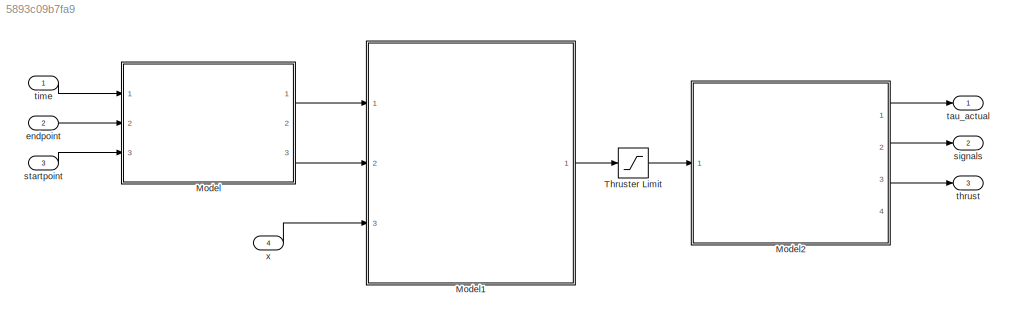
MODEL slx_5893c09b7fa9
KIND model
CONFIG AbsTol = auto
CONFIG EnableMultiTasking = off
CONFIG FixedStep = auto
CONFIG MaxStep = auto
CONFIG MinStep = auto
CONFIG RelTol = 1e-3
CONFIG SampleTimeConstraint = Unconstrained
CONFIG Solver = VariableStepAuto
CONFIG SolverName = VariableStepAuto
CONFIG StartTime = 0.0
CONFIG StopTime = 10.0
BLOCK [ModelReference] Model
  ModelNameDialog = trajectory_planner.slx
  ModelReferenceVersion = 1.30
  Ports = [3, 3]
BLOCK [ModelReference] Model1
  ModelNameDialog = controller.slx
  ModelReferenceVersion = 1.73
  Ports = [3, 1]
BLOCK [ModelReference] Model2
  ModelNameDialog = thrust_allocation.slx
  ModelReferenceVersion = 1.77
  Ports = [1, 4]
BLOCK [Saturate] Thruster Limit
  InputPortMap = u0
  LowerLimit = thrust_lower_limit
  Ports = [1, 1]
  UpperLimit = thrust_upper_limit
BLOCK [Inport] endpoint 
  IconDisplay = Port number
  Port = 2
  PortDimensions = 6
BLOCK [Outport] signals
  IconDisplay = Port number
  Port = 2
  VectorParamsAs1DForOutWhenUnconnected = off
BLOCK [Inport] startpoint
  IconDisplay = Port number
  Port = 3
  PortDimensions = 6
BLOCK [Outport] tau_actual
  IconDisplay = Port number
BLOCK [Outport] thrust 
  IconDisplay = Port number
  Port = 3
  VectorParamsAs1DForOutWhenUnconnected = off
BLOCK [Inport] time 
  IconDisplay = Port number
BLOCK [Inport] x
  IconDisplay = Port number
  Port = 4
LINE Model1:1 -> Thruster Limit:1
LINE Model2:1 -> tau_actual:1
LINE Model2:2 -> signals:1
LINE Model2:3 -> thrust :1
LINE Model:1 -> Model1:1
LINE Model:3 -> Model1:2
LINE Thruster Limit:1 -> Model2:1
LINE endpoint :1 -> Model:2
LINE startpoint:1 -> Model:3
LINE time :1 -> Model:1
LINE x:1 -> Model1:3
